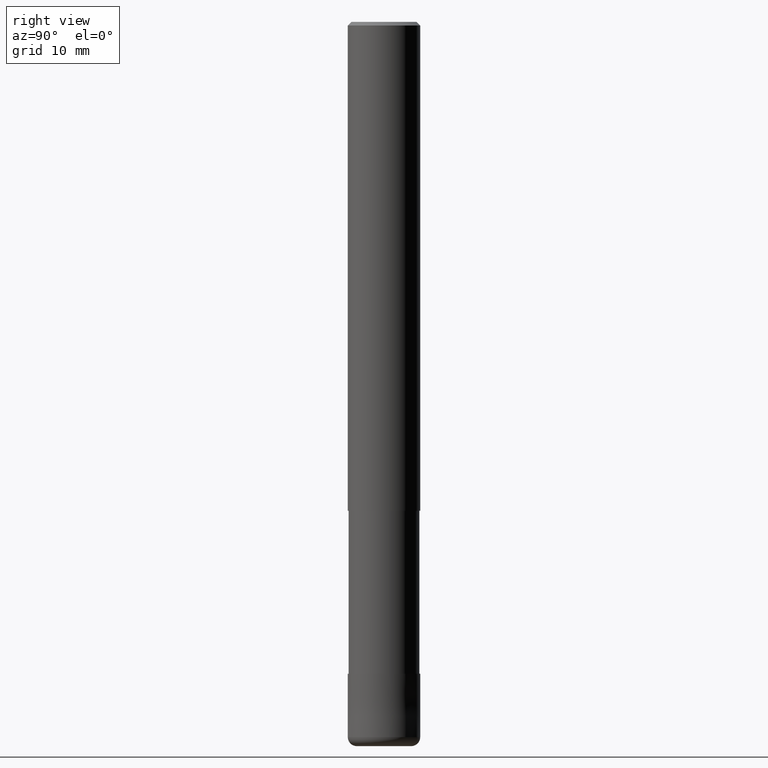
[diagram: clean part render]
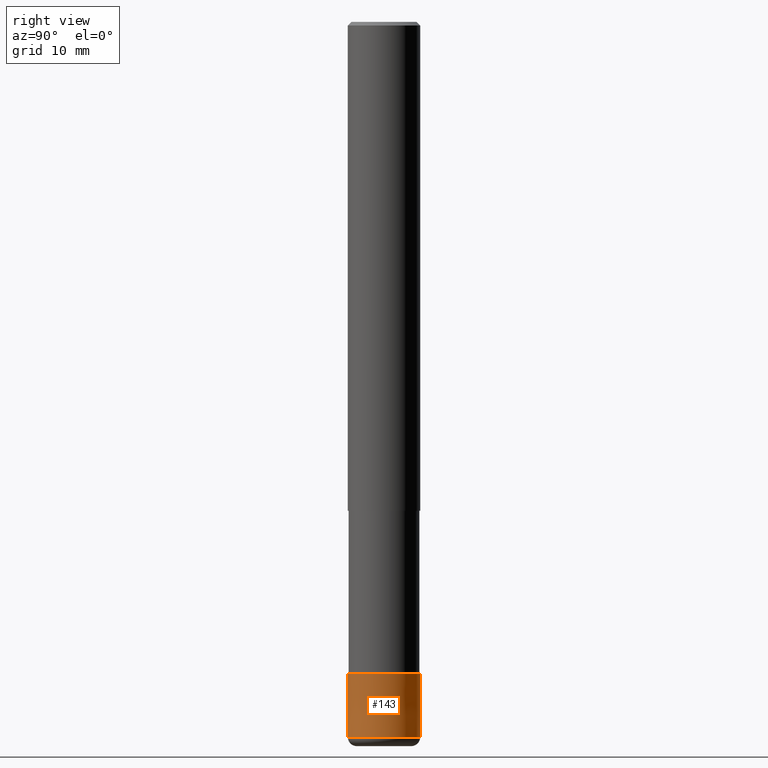
[diagram: same view with one face highlighted and labeled with its STEP entity id]
A machine part, right view. The second image highlights one B-rep face of the part: STEP entity #143.
In plain terms, the highlighted conical surface has half-angle 0.001 deg.
Its self-contained STEP definition (entity closure, byte-faithful):
#117=EDGE_CURVE('',#209,#131,#304,.T.);
#123=EDGE_CURVE('',#181,#243,#310,.T.);
#127=EDGE_CURVE('',#131,#181,#315,.T.);
#131=VERTEX_POINT('',#319);
#143=ADVANCED_FACE('',(#333),#334,.T.);
#181=VERTEX_POINT('',#378);
#209=VERTEX_POINT('',#410);
#243=VERTEX_POINT('',#449);
#261=EDGE_CURVE('',#209,#243,#467,.T.);
#304=LINE('',#508,#509);
#310=LINE('',#517,#518);
#315=CIRCLE('',#524,4.0);
#319=CARTESIAN_POINT('',(0.0,4.0,-79.0));
#333=FACE_OUTER_BOUND('',#548,.T.);
#334=CONICAL_SURFACE('',#549,3.99995,1.42857142847726E-005);
#378=CARTESIAN_POINT('',(4.89842541528951E-016,-4.0,-79.0));
#410=CARTESIAN_POINT('',(0.0,3.9999,-72.0));
#449=CARTESIAN_POINT('',(4.89830295465413E-016,-3.9999,-72.0));
#467=CIRCLE('',#714,3.9999);
#508=CARTESIAN_POINT('',(-4.89836418497182E-016,3.99995,-75.5));
#509=VECTOR('',#747,1.0);
#517=CARTESIAN_POINT('',(4.89836418497182E-016,-3.99995,-75.5));
#518=VECTOR('',#751,1.0);
#524=AXIS2_PLACEMENT_3D('',#760,#761,#762);
#548=EDGE_LOOP('',(#783,#784,#785,#786));
#549=AXIS2_PLACEMENT_3D('',#787,#788,#789);
#714=AXIS2_PLACEMENT_3D('',#953,#954,#955);
#747=DIRECTION('',(-1.74943764814286E-021,1.42857142842867E-005,-0.999999999897959));
#751=DIRECTION('',(-1.74943764814286E-021,1.42857142842867E-005,0.999999999897959));
#760=CARTESIAN_POINT('',(0.0,0.0,-79.0));
#761=DIRECTION('',(0.0,0.0,-1.0));
#762=DIRECTION('',(0.0,1.0,0.0));
#783=ORIENTED_EDGE('',*,*,#117,.F.);
#784=ORIENTED_EDGE('',*,*,#261,.T.);
#785=ORIENTED_EDGE('',*,*,#123,.F.);
#786=ORIENTED_EDGE('',*,*,#127,.F.);
#787=CARTESIAN_POINT('',(0.0,0.0,-75.5));
#788=DIRECTION('',(0.0,-0.0,-1.0));
#789=DIRECTION('',(0.0,1.0,0.0));
#953=CARTESIAN_POINT('',(0.0,0.0,-72.0));
#954=DIRECTION('',(0.0,0.0,-1.0));
#955=DIRECTION('',(0.0,1.0,0.0));